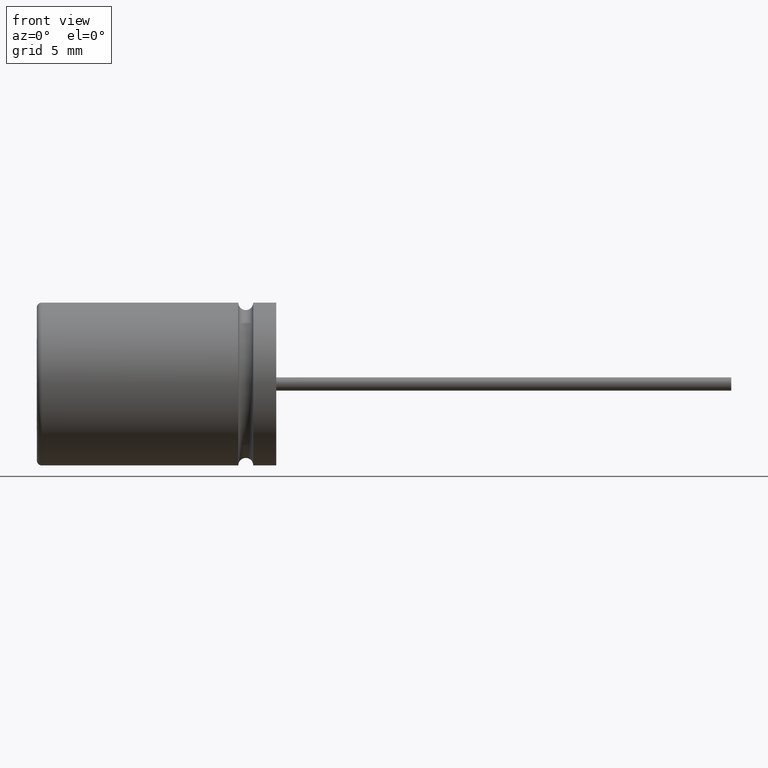
[diagram: clean part render]
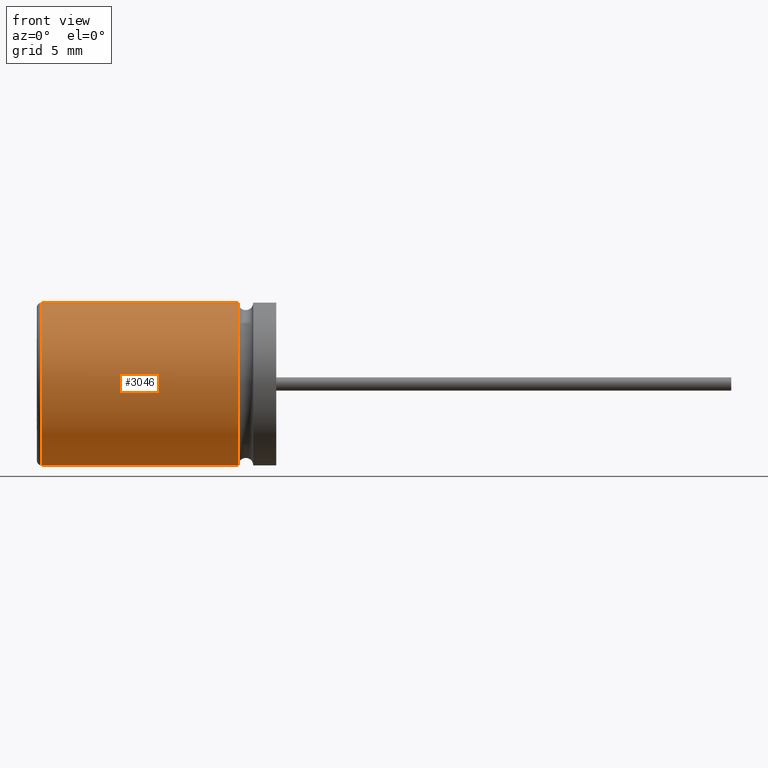
[diagram: same view with one face highlighted and labeled with its STEP entity id]
A machine part, front view. The second image highlights one B-rep face of the part: STEP entity #3046.
In plain terms, the highlighted cylindrical surface (partial cylindrical patch) has radius 3.4 mm, axis along (-1, -0, -0).
Its self-contained STEP definition (entity closure, byte-faithful):
#202 = DIRECTION ( 'NONE',  ( -1.000000000000000000, -0.0000000000000000000, -0.0000000000000000000 ) ) ;
#203 = DIRECTION ( 'NONE',  ( 1.000000000000000000, 0.0000000000000000000, 0.0000000000000000000 ) ) ;
#301 = EDGE_LOOP ( 'NONE', ( #2598, #1988, #2619, #738 ) ) ;
#332 = CARTESIAN_POINT ( 'NONE',  ( 10.00000000000000000, 0.0000000000000000000, 0.0000000000000000000 ) ) ;
#553 = EDGE_CURVE ( 'NONE', #2174, #1934, #1695, .T. ) ;
#648 = CYLINDRICAL_SURFACE ( 'NONE', #1343, 3.399999999999999900 ) ;
#653 = VERTEX_POINT ( 'NONE', #2029 ) ;
#738 = ORIENTED_EDGE ( 'NONE', *, *, #1068, .T. ) ;
#739 = EDGE_CURVE ( 'NONE', #653, #2272, #2068, .T. ) ;
#796 = AXIS2_PLACEMENT_3D ( 'NONE', #3367, #203, #2030 ) ;
#1068 = EDGE_CURVE ( 'NONE', #1934, #2272, #1646, .T. ) ;
#1207 = VECTOR ( 'NONE', #202, 1000.000000000000000 ) ;
#1298 = CARTESIAN_POINT ( 'NONE',  ( 8.412499999999999600, 4.163799117101000600E-016, 3.399999999999999900 ) ) ;
#1322 = DIRECTION ( 'NONE',  ( 0.0000000000000000000, 0.0000000000000000000, 1.000000000000000000 ) ) ;
#1341 = DIRECTION ( 'NONE',  ( -1.000000000000000000, -0.0000000000000000000, -0.0000000000000000000 ) ) ;
#1343 = AXIS2_PLACEMENT_3D ( 'NONE', #332, #1341, #1322 ) ;
#1512 = DIRECTION ( 'NONE',  ( 1.000000000000000000, -0.0000000000000000000, -0.0000000000000000000 ) ) ;
#1547 = AXIS2_PLACEMENT_3D ( 'NONE', #3148, #1512, #2596 ) ;
#1581 = CARTESIAN_POINT ( 'NONE',  ( 0.2000000000000005100, 0.0000000000000000000, 3.399999999999999900 ) ) ;
#1646 = CIRCLE ( 'NONE', #796, 3.399999999999999900 ) ;
#1695 = LINE ( 'NONE', #2566, #1207 ) ;
#1800 = CIRCLE ( 'NONE', #1547, 3.399999999999999900 ) ;
#1882 = CARTESIAN_POINT ( 'NONE',  ( 10.00000000000000000, 4.163799117101000600E-016, -3.399999999999999900 ) ) ;
#1934 = VERTEX_POINT ( 'NONE', #1581 ) ;
#1988 = ORIENTED_EDGE ( 'NONE', *, *, #2153, .F. ) ;
#2029 = CARTESIAN_POINT ( 'NONE',  ( 8.412499999999999600, 0.0000000000000000000, -3.399999999999999900 ) ) ;
#2030 = DIRECTION ( 'NONE',  ( 0.0000000000000000000, 0.0000000000000000000, -1.000000000000000000 ) ) ;
#2068 = LINE ( 'NONE', #1882, #3074 ) ;
#2153 = EDGE_CURVE ( 'NONE', #2174, #653, #1800, .T. ) ;
#2174 = VERTEX_POINT ( 'NONE', #1298 ) ;
#2191 = DIRECTION ( 'NONE',  ( -1.000000000000000000, -0.0000000000000000000, -0.0000000000000000000 ) ) ;
#2272 = VERTEX_POINT ( 'NONE', #2571 ) ;
#2566 = CARTESIAN_POINT ( 'NONE',  ( 10.00000000000000000, 0.0000000000000000000, 3.399999999999999900 ) ) ;
#2571 = CARTESIAN_POINT ( 'NONE',  ( 0.2000000000000005100, 4.163799117101000600E-016, -3.399999999999999900 ) ) ;
#2596 = DIRECTION ( 'NONE',  ( 0.0000000000000000000, 0.0000000000000000000, -1.000000000000000000 ) ) ;
#2598 = ORIENTED_EDGE ( 'NONE', *, *, #739, .F. ) ;
#2619 = ORIENTED_EDGE ( 'NONE', *, *, #553, .T. ) ;
#2629 = FACE_OUTER_BOUND ( 'NONE', #301, .T. ) ;
#3046 = ADVANCED_FACE ( 'NONE', ( #2629 ), #648, .T. ) ;
#3074 = VECTOR ( 'NONE', #2191, 1000.000000000000000 ) ;
#3148 = CARTESIAN_POINT ( 'NONE',  ( 8.412499999999999600, 0.0000000000000000000, 0.0000000000000000000 ) ) ;
#3367 = CARTESIAN_POINT ( 'NONE',  ( 0.2000000000000005100, 0.0000000000000000000, 0.0000000000000000000 ) ) ;